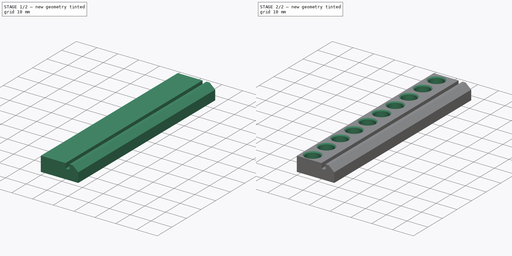
[diagram: build sequence overview — one tinted view per stage of 2, left to right]
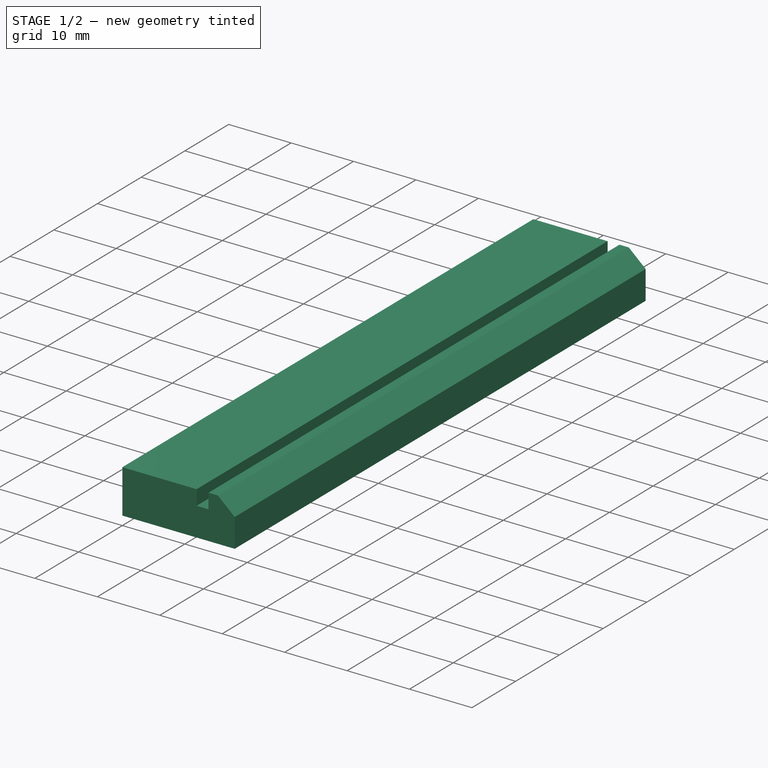
[diagram: stage 1 of 2 — iso view after this stage's code; geometry added in this stage tinted green]
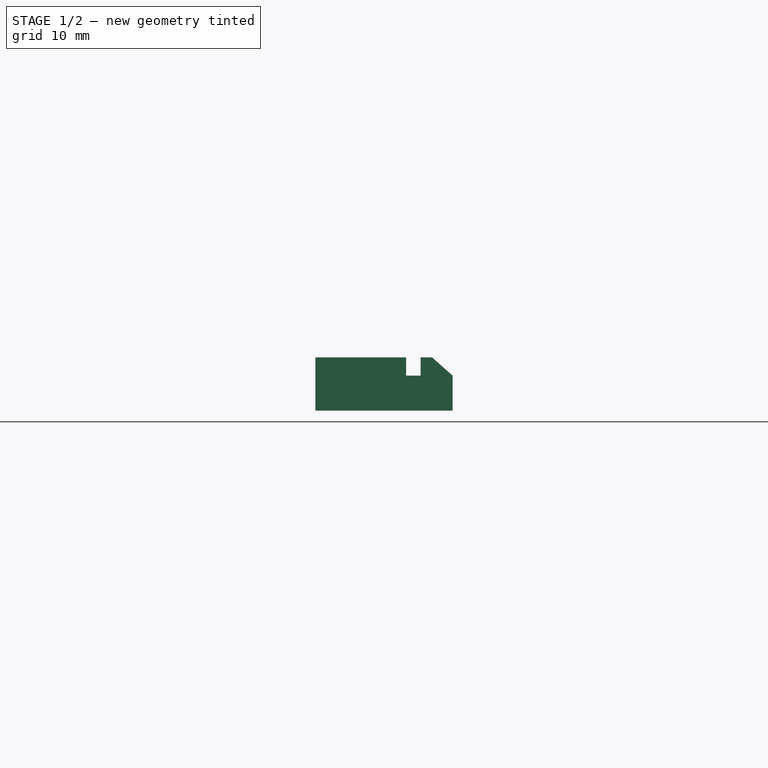
[diagram: stage 1 of 2 — front view after this stage's code; geometry added in this stage tinted green]
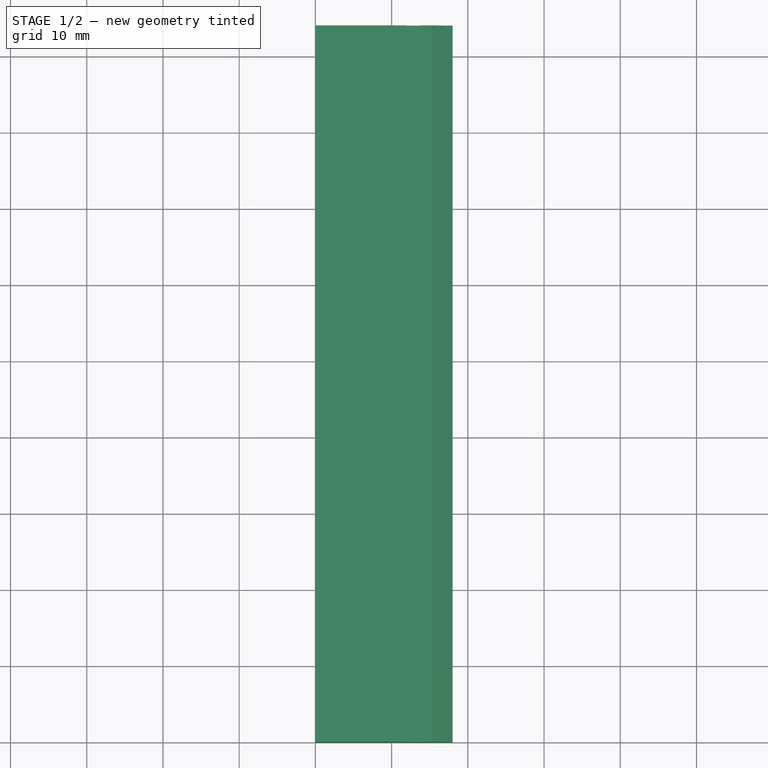
[diagram: stage 1 of 2 — top view after this stage's code; geometry added in this stage tinted green]
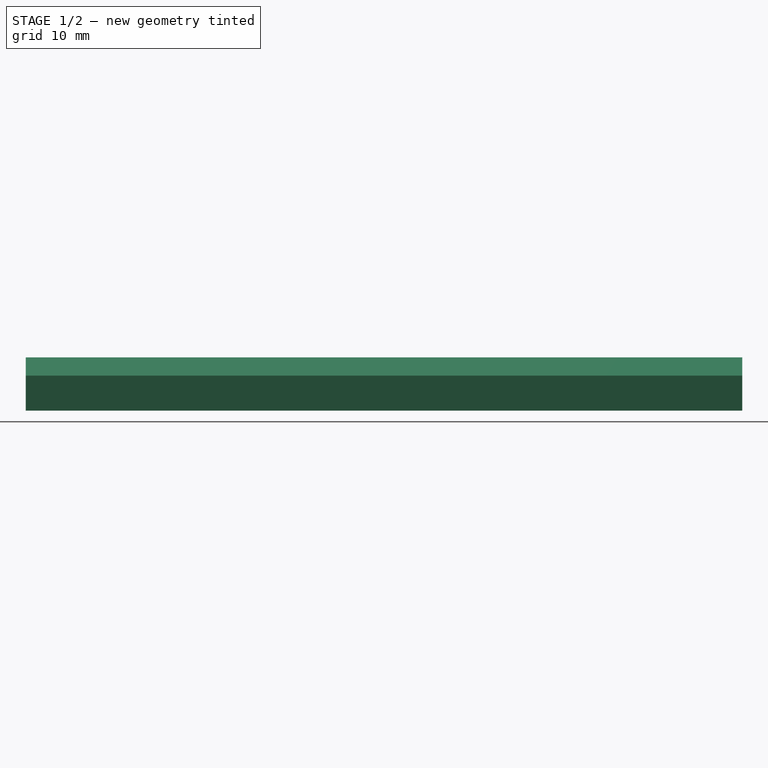
[diagram: stage 1 of 2 — right view after this stage's code; geometry added in this stage tinted green]
FCSTD DOCUMENT  (FreeCAD 0.19R24267 +99 (Git))
Label: NozzleHolder-M6
License: All rights reserved
LicenseURL: http://en.wikipedia.org/wiki/All_rights_reserved
objects: Sketcher::SketchObject×3, PartDesign::Pad×1, PartDesign::Pocket×1, PartDesign::Hole×1, PartDesign::LinearPattern×1, PartDesign::Body×1
note: 11 computed .brp shape members not serialized (recipe doc carries the construction recipe); baked Part::Feature solids carry a one-line shape summary decoded from their .brp

FEATURE [Sketcher::SketchObject] Sketch
  FullyConstrained = true
  MapMode = 5
  Support = -> [XY_Plane]
  sketch-geometry (6):
    g0: LineSegment StartX=0 StartY=94 StartZ=0 EndX=18 EndY=94 EndZ=0
    g1: LineSegment StartX=18 StartY=94 StartZ=0 EndX=18 EndY=0 EndZ=0
    g2: LineSegment StartX=18 StartY=0 StartZ=0 EndX=0 EndY=0 EndZ=0
    g3: LineSegment StartX=0 StartY=0 StartZ=0 EndX=0 EndY=94 EndZ=0
    g4: GeomPoint X=12 Y=94 Z=0
    g5: LineSegment StartX=12 StartY=94 StartZ=0 EndX=12 EndY=0 EndZ=0
  constraints (16):
    c: Coincident(g0,g1)
    c: Coincident(g1,g2)
    c: Coincident(g2,g3)
    c: Coincident(g3,g0)
    c: Horizontal(g0)
    c: Horizontal(g2)
    c: Vertical(g1)
    c: Vertical(g3)
    c: PointOnObject(g4,g0)
    c: Distance(g4,g0) = 6
    c: Coincident(g2,g-1)
    c: Coincident(g5,g4)
    c: PointOnObject(g5,g2)
    c: Vertical(g5)
    c: Distance(g3) = 94
    c: Distance(g4,g0) = 12
FEATURE [PartDesign::Pad] Pad
  Direction = (1,1,1)
  Length = 7
  Length2 = 100
  Profile = -> Sketch
  Type = 0
FEATURE [Sketcher::SketchObject] Sketch001
  ExternalGeometry = -> [Pad]
  FullyConstrained = true
  MapMode = 5
  Placement = pos=(0,0,0) rot=(1,0,0;1.5708rad)
  Support = -> [Pad]
  sketch-geometry (14):
    g0: LineSegment StartX=11.9 StartY=11.5 StartZ=0 EndX=11.9 EndY=4.6 EndZ=0
    g1: LineSegment StartX=11.9 StartY=4.6 StartZ=0 EndX=13.8 EndY=4.6 EndZ=0
    g2: LineSegment StartX=13.8 StartY=4.6 StartZ=0 EndX=13.8 EndY=7 EndZ=0
    g3: LineSegment StartX=18 StartY=4.6 StartZ=0 EndX=18 EndY=-1.6 EndZ=0
    g4: LineSegment StartX=13.8 StartY=-4 StartZ=0 EndX=13.8 EndY=-1.6 EndZ=0
    g5: LineSegment StartX=13.8 StartY=-1.6 StartZ=0 EndX=11.9 EndY=-1.6 EndZ=0
    g6: LineSegment StartX=11.9 StartY=-1.6 StartZ=0 EndX=11.9 EndY=-8.5 EndZ=0
    g7: LineSegment StartX=11.9 StartY=-8.5 StartZ=0 EndX=20.4 EndY=-8.5 EndZ=0
    g8: LineSegment StartX=20.4 StartY=-8.5 StartZ=0 EndX=20.4 EndY=11.5 EndZ=0
    g9: LineSegment StartX=20.4 StartY=11.5 StartZ=0 EndX=11.9 EndY=11.5 EndZ=0
    g10: LineSegment StartX=13.8 StartY=7 StartZ=0 EndX=15.3 EndY=7 EndZ=0
    g11: LineSegment StartX=15.3 StartY=7 StartZ=0 EndX=18 EndY=4.6 EndZ=0
    g12: LineSegment StartX=18 StartY=-1.6 StartZ=0 EndX=15.3 EndY=-4 EndZ=0
    g13: LineSegment StartX=15.3 StartY=-4 StartZ=0 EndX=13.8 EndY=-4 EndZ=0
  constraints (42):
    c: Vertical(g0)
    c: Coincident(g0,g1)
    c: Horizontal(g1)
    c: Coincident(g1,g2)
    c: Vertical(g2)
    c: Vertical(g3)
    c: Vertical(g4)
    c: Coincident(g4,g5)
    c: Horizontal(g5)
    c: Coincident(g5,g6)
    c: Vertical(g6)
    c: Coincident(g6,g7)
    c: Horizontal(g7)
    c: Coincident(g7,g8)
    c: Vertical(g8)
    c: Coincident(g8,g9)
    c: Coincident(g9,g0)
    c: Horizontal(g9)
    c: Distance(g0,g6) = 20
    c: Vertical(g0,g6)
    c: Distance(g0,g5) = 6.2
    c: Distance(g1) = 1.9
    c: Vertical(g1,g4)
    c: Coincident(g2,g10)
    c: Horizontal(g10)
    c: Coincident(g10,g11)
    c: Coincident(g11,g3)
    c: Coincident(g3,g12)
    c: Coincident(g12,g13)
    c: Coincident(g13,g4)
    c: Horizontal(g13)
    c: Vertical(g10,g12)
    c: Distance(g12,g6) = 3.4
    c: Distance(g3) = 6.2
    c: Equal(g11,g12)
    c: Distance(g5,g3) = 6.1
    c: Equal(g0,g6)
    c: Equal(g2,g4)
    c: Distance(g9) = 8.5
    c: Distance(g2,g4) = 11
    c: PointOnObject(g3,g-3)
    c: Horizontal(g10,g-3)
FEATURE [PartDesign::Pocket] Pocket
  BaseFeature = -> Pad
  Length = 5
  Length2 = 100
  Profile = -> Sketch001
  Type = 1
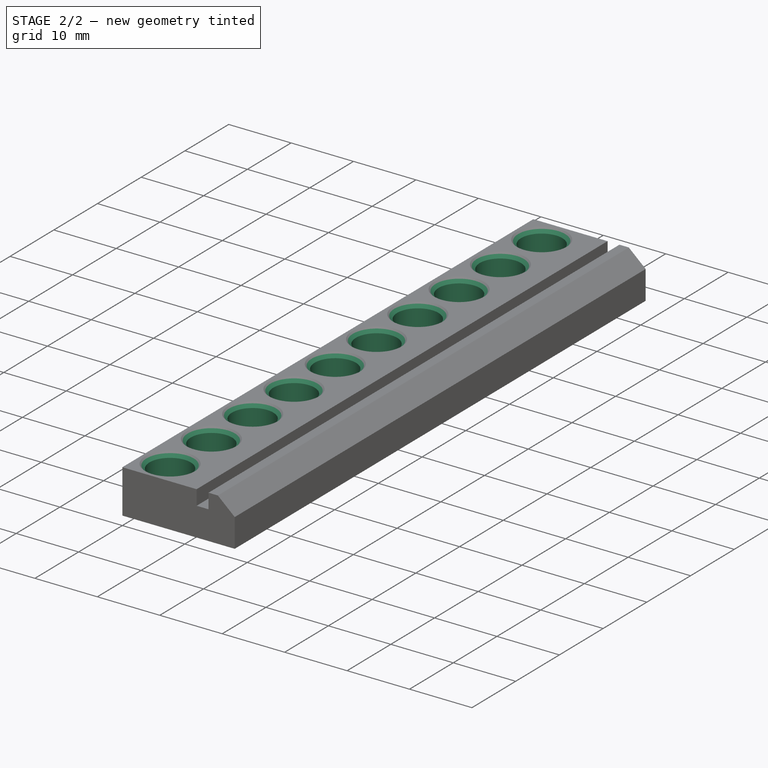
[diagram: stage 2 of 2 — iso view after this stage's code; geometry added in this stage tinted green]
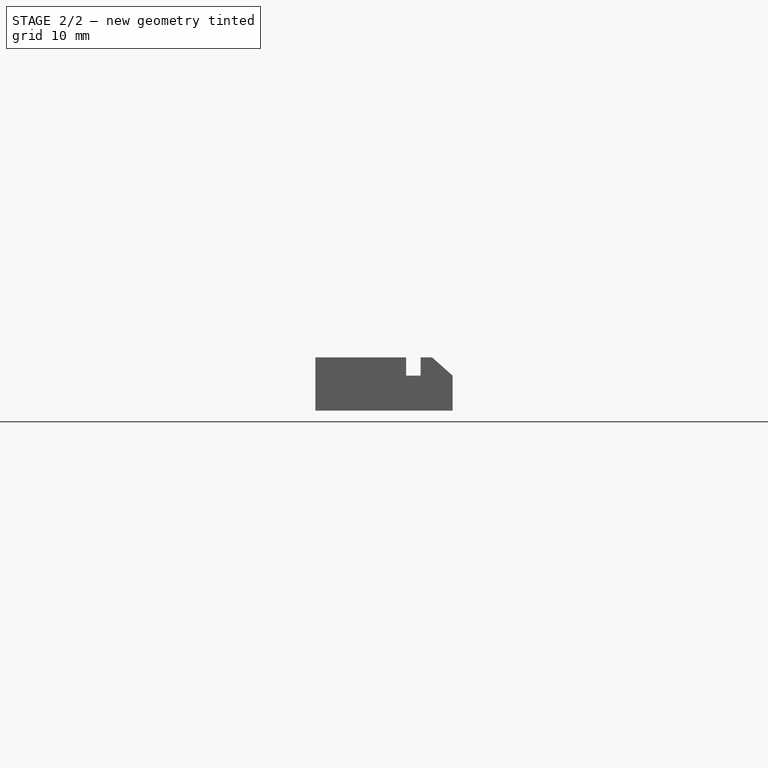
[diagram: stage 2 of 2 — front view after this stage's code; geometry added in this stage tinted green]
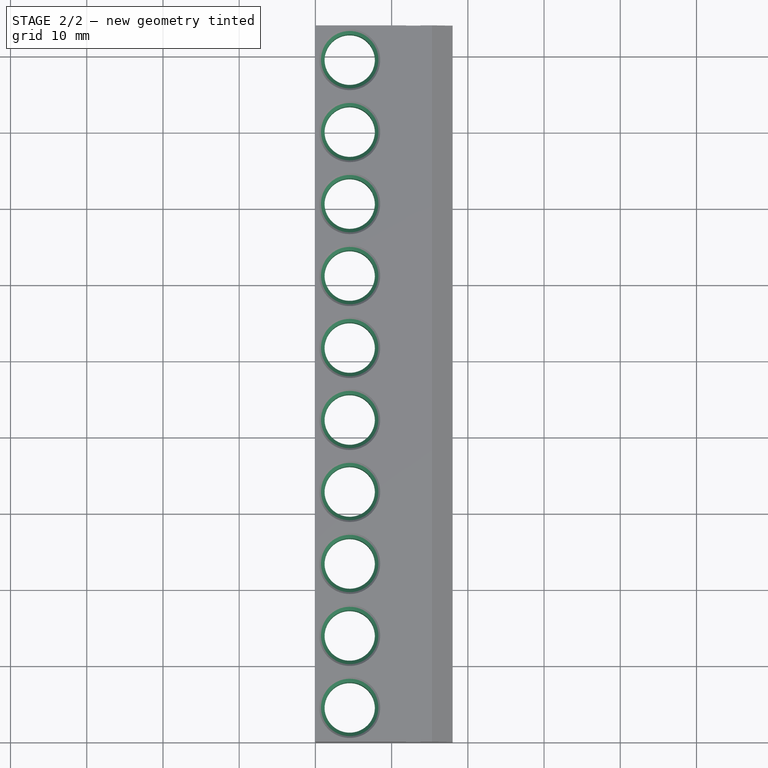
[diagram: stage 2 of 2 — top view after this stage's code; geometry added in this stage tinted green]
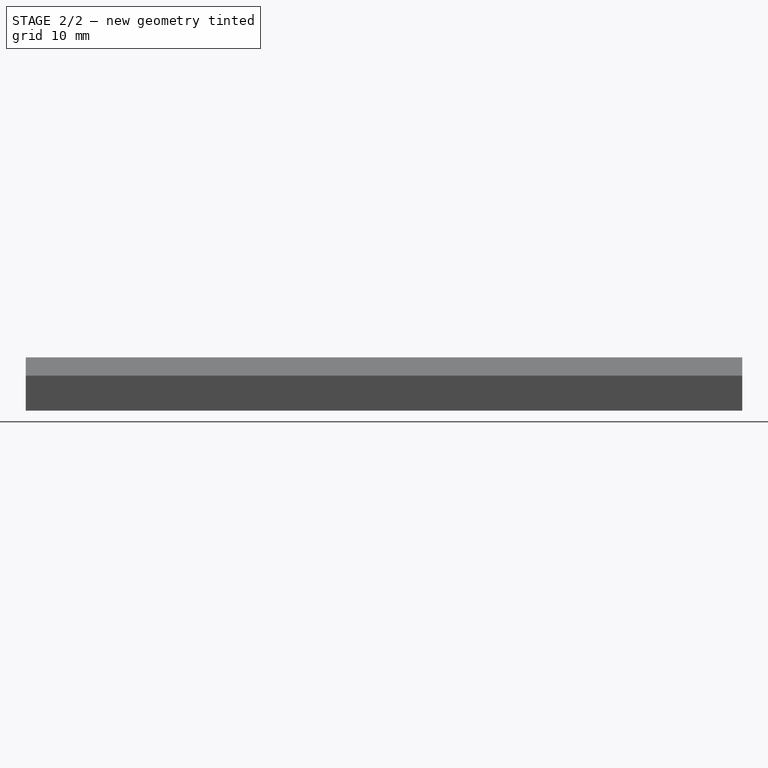
[diagram: stage 2 of 2 — right view after this stage's code; geometry added in this stage tinted green]
FEATURE [Sketcher::SketchObject] Sketch002
  FullyConstrained = false
  MapMode = 5
  Placement = pos=(0,0,7) rot=(0,0,1;0rad)
  Support = -> [Pocket]
  sketch-geometry (2):
    g0: GeomPoint X=4.5 Y=4.5 Z=0
    g1: Circle CenterX=4.5 CenterY=4.5 CenterZ=0 NormalX=0 NormalY=0 NormalZ=1 AngleXU=0 Radius=0.889521
  constraints (3):
    c: Distance(g0,g-2) = 4.5
    c: Distance(g0,g-1) = 4.5
    c: Coincident(g1,g0)
FEATURE [PartDesign::Hole] Hole
  BaseFeature = -> Pocket
  Depth = 25
  DepthType = 0
  Diameter = 6.6
  DrillForDepth = false
  DrillPoint = 1
  DrillPointAngle = 118
  HoleCutCountersinkAngle = 90
  HoleCutCustomValues = false
  HoleCutDepth = 4
  HoleCutDiameter = 8
  HoleCutType = 2
  ModelActualThread = false
  Profile = -> Sketch002
  Tapered = false
  TaperedAngle = 90
  ThreadAngle = 0
  ThreadClass = 0
  ThreadCutOffInner = 0
  ThreadCutOffOuter = 0
  ThreadDirection = 0
  ThreadFit = 0
  ThreadPitch = 0
  ThreadSize = 14
  ThreadType = 1
  Threaded = false
FEATURE [PartDesign::LinearPattern] LinearPattern
  BaseFeature = -> Hole
  Direction = -> Y_Axis
  Length = 85
  Occurrences = 10
  Originals = -> [Hole]
FEATURE [PartDesign::Body] Body
  Group = -> [Sketch,Pad,Sketch001,Pocket,Sketch002,Hole,LinearPattern]
  Origin = -> Origin
  Tip = -> LinearPattern
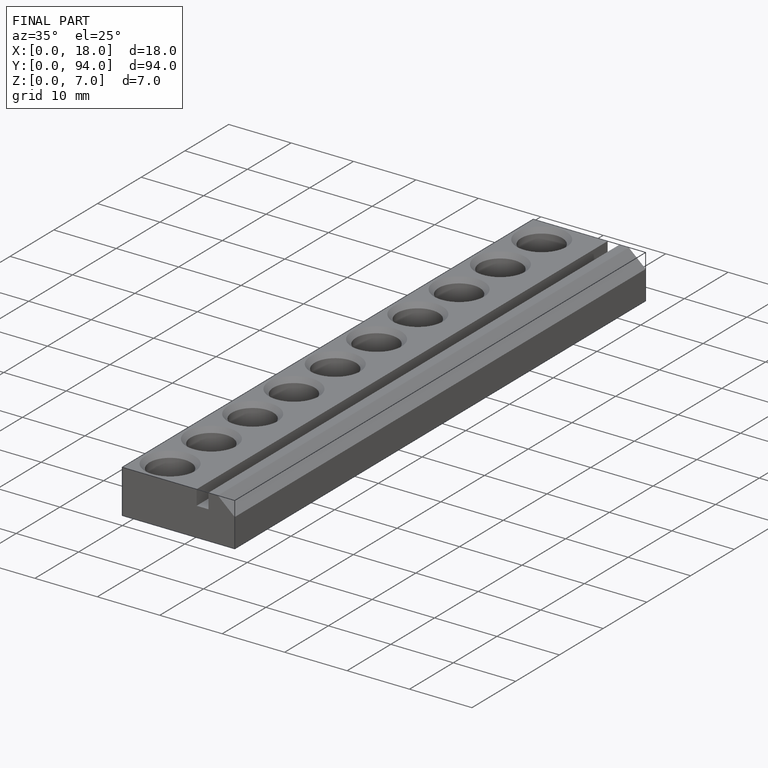
[diagram: finished part — iso view with bounding-box wireframe]
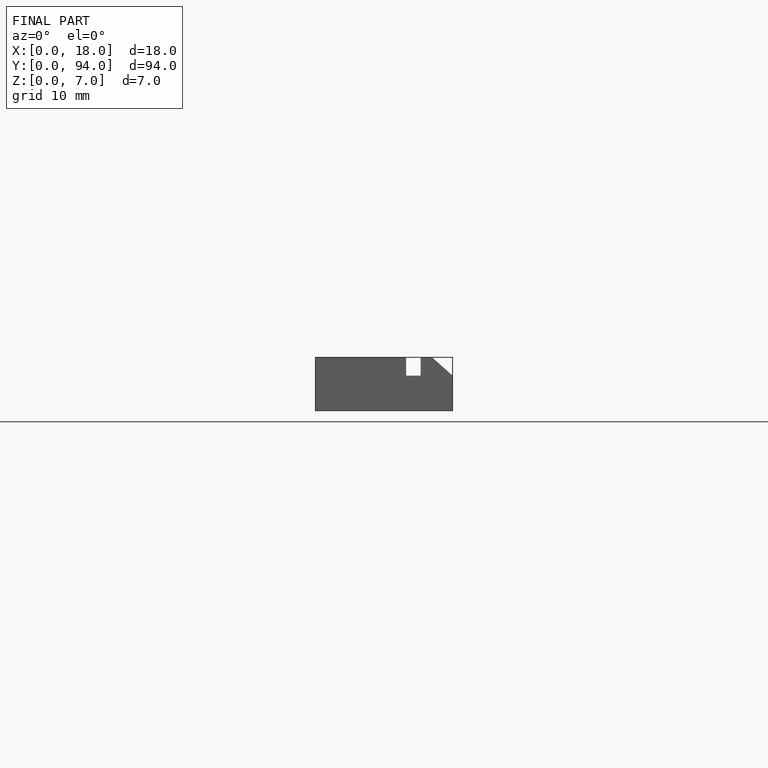
[diagram: finished part — front view with bounding-box wireframe]
